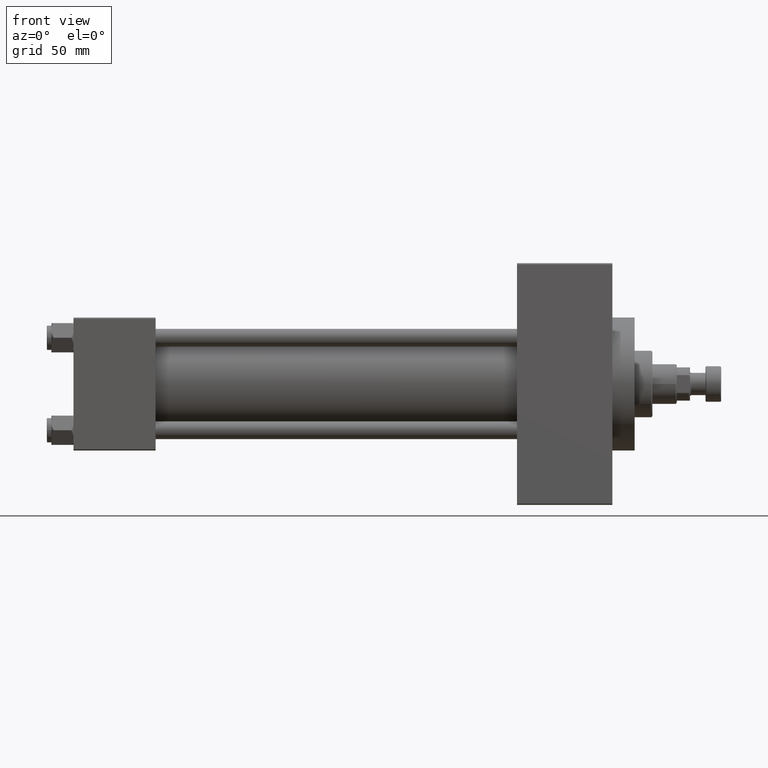
[diagram: clean part render]
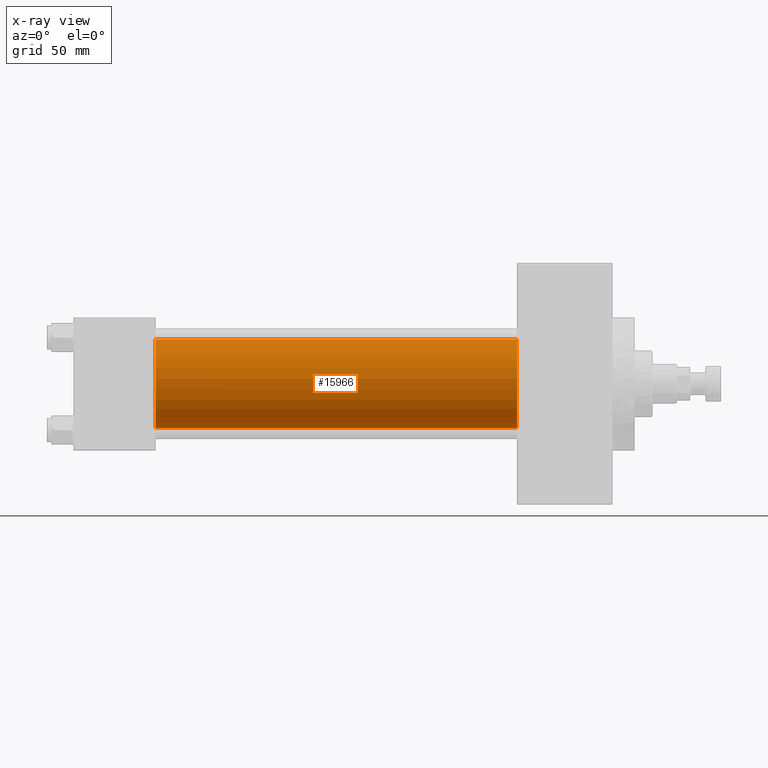
[diagram: x-ray — body ghosted, one internal face saturated and labeled with its STEP entity id]
A machine part, front view, then the same camera in x-ray: the body is ghosted and one INTERNAL B-rep face — a face not visible from any outside direction — is saturated and labeled: STEP entity #15966.
In plain terms, the highlighted cylindrical surface (partial cylindrical patch) has radius 20 mm, axis along (-1, -0, -0).
Its self-contained STEP definition (entity closure, byte-faithful):
#1416 = EDGE_CURVE ( 'NONE', #20791, #2220, #9175, .T. ) ;
#1722 = CARTESIAN_POINT ( 'NONE',  ( 200.0000000000000000, -1.527916156705042519E-16, -20.00000000000000000 ) ) ;
#2220 = VERTEX_POINT ( 'NONE', #5910 ) ;
#3038 = CARTESIAN_POINT ( 'NONE',  ( 37.00000000000000000, -2.602085213965210642E-15, 0.000000000000000000 ) ) ;
#3094 = EDGE_CURVE ( 'NONE', #20791, #6159, #38013, .T. ) ;
#3538 = DIRECTION ( 'NONE',  ( 1.000000000000000000, 0.000000000000000000, 0.000000000000000000 ) ) ;
#5910 = CARTESIAN_POINT ( 'NONE',  ( 37.00000000000000000, -2.602085213965210642E-15, 20.00000000000000000 ) ) ;
#6159 = VERTEX_POINT ( 'NONE', #1722 ) ;
#7033 = CARTESIAN_POINT ( 'NONE',  ( 37.00000000000000000, -1.527916156705042519E-16, -20.00000000000000000 ) ) ;
#7581 = VECTOR ( 'NONE', #35848, 1000.000000000000000 ) ;
#7957 = CARTESIAN_POINT ( 'NONE',  ( 200.0000000000000000, -2.602085213965210642E-15, 0.000000000000000000 ) ) ;
#9175 = LINE ( 'NONE', #17234, #7581 ) ;
#9437 = EDGE_CURVE ( 'NONE', #2220, #19221, #25101, .T. ) ;
#11236 = CYLINDRICAL_SURFACE ( 'NONE', #42249, 20.00000000000000000 ) ;
#14266 = VECTOR ( 'NONE', #26923, 1000.000000000000000 ) ;
#15266 = FACE_OUTER_BOUND ( 'NONE', #24337, .T. ) ;
#15966 = ADVANCED_FACE ( 'NONE', ( #15266 ), #11236, .F. ) ;
#17234 = CARTESIAN_POINT ( 'NONE',  ( 200.0000000000000000, -2.602085213965210642E-15, 20.00000000000000000 ) ) ;
#19221 = VERTEX_POINT ( 'NONE', #7033 ) ;
#20791 = VERTEX_POINT ( 'NONE', #37405 ) ;
#22296 = DIRECTION ( 'NONE',  ( -1.000000000000000000, -0.000000000000000000, -0.000000000000000000 ) ) ;
#23949 = EDGE_CURVE ( 'NONE', #6159, #19221, #49318, .T. ) ;
#24337 = EDGE_LOOP ( 'NONE', ( #26141, #40995, #47319, #26866 ) ) ;
#25101 = CIRCLE ( 'NONE', #41181, 20.00000000000000000 ) ;
#26141 = ORIENTED_EDGE ( 'NONE', *, *, #3094, .T. ) ;
#26427 = CARTESIAN_POINT ( 'NONE',  ( 200.0000000000000000, -1.527916156705042519E-16, -20.00000000000000000 ) ) ;
#26866 = ORIENTED_EDGE ( 'NONE', *, *, #1416, .F. ) ;
#26923 = DIRECTION ( 'NONE',  ( -1.000000000000000000, -0.000000000000000000, -0.000000000000000000 ) ) ;
#27503 = DIRECTION ( 'NONE',  ( 0.000000000000000000, 0.000000000000000000, -1.000000000000000000 ) ) ;
#30589 = DIRECTION ( 'NONE',  ( 0.000000000000000000, 0.000000000000000000, 1.000000000000000000 ) ) ;
#33472 = DIRECTION ( 'NONE',  ( 0.000000000000000000, 0.000000000000000000, -1.000000000000000000 ) ) ;
#35326 = CARTESIAN_POINT ( 'NONE',  ( 200.0000000000000000, -2.602085213965210642E-15, 0.000000000000000000 ) ) ;
#35848 = DIRECTION ( 'NONE',  ( -1.000000000000000000, -0.000000000000000000, -0.000000000000000000 ) ) ;
#37405 = CARTESIAN_POINT ( 'NONE',  ( 200.0000000000000000, -2.602085213965210642E-15, 20.00000000000000000 ) ) ;
#38013 = CIRCLE ( 'NONE', #49255, 20.00000000000000000 ) ;
#40995 = ORIENTED_EDGE ( 'NONE', *, *, #23949, .T. ) ;
#41181 = AXIS2_PLACEMENT_3D ( 'NONE', #3038, #3538, #33472 ) ;
#42249 = AXIS2_PLACEMENT_3D ( 'NONE', #7957, #22296, #30589 ) ;
#42859 = DIRECTION ( 'NONE',  ( 1.000000000000000000, 0.000000000000000000, 0.000000000000000000 ) ) ;
#47319 = ORIENTED_EDGE ( 'NONE', *, *, #9437, .F. ) ;
#49255 = AXIS2_PLACEMENT_3D ( 'NONE', #35326, #42859, #27503 ) ;
#49318 = LINE ( 'NONE', #26427, #14266 ) ;